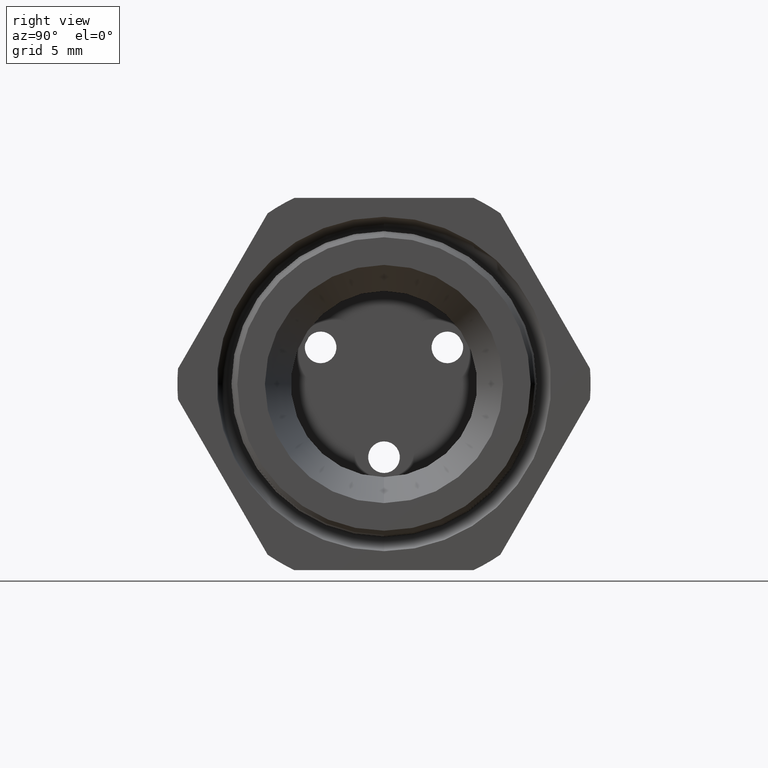
[diagram: clean part render]
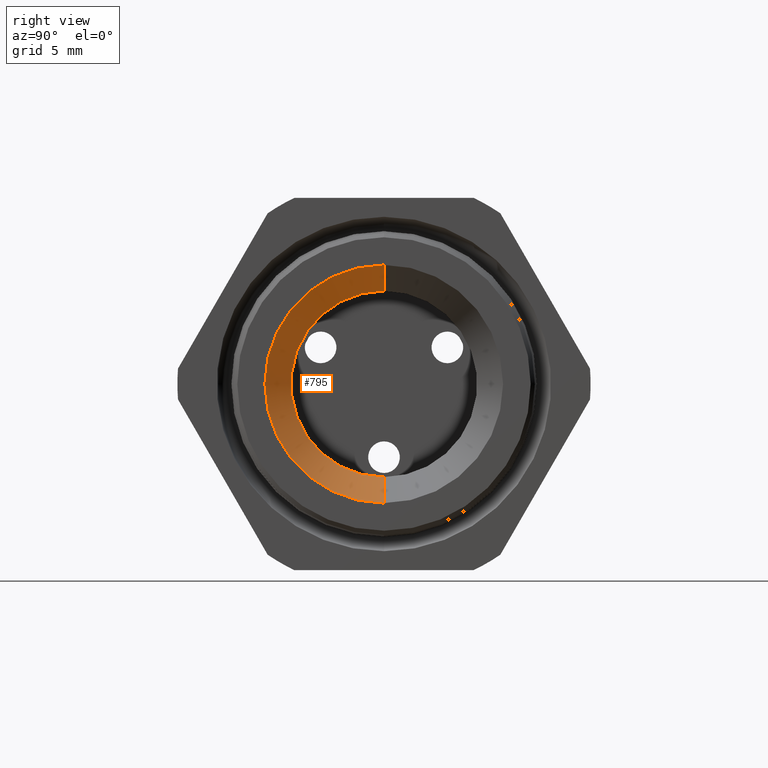
[diagram: same view with one face highlighted and labeled with its STEP entity id]
A machine part, right view. The second image highlights one B-rep face of the part: STEP entity #795.
In plain terms, the highlighted conical surface has half-angle 5.108 deg.
Its self-contained STEP definition (entity closure, byte-faithful):
#795 = ADVANCED_FACE ( 'NONE', ( #2446 ), #2445, .F. ) ;
#796 = ORIENTED_EDGE ( 'NONE', *, *, #946, .F. ) ;
#863 = EDGE_LOOP ( 'NONE', ( #796, #943, #945, #876 ) ) ;
#875 = VERTEX_POINT ( 'NONE', #2662 ) ;
#876 = ORIENTED_EDGE ( 'NONE', *, *, #953, .F. ) ;
#936 = VERTEX_POINT ( 'NONE', #2745 ) ;
#937 = EDGE_CURVE ( 'NONE', #952, #875, #2744, .T. ) ;
#938 = VERTEX_POINT ( 'NONE', #2739 ) ;
#943 = ORIENTED_EDGE ( 'NONE', *, *, #944, .T. ) ;
#944 = EDGE_CURVE ( 'NONE', #936, #952, #2734, .T. ) ;
#945 = ORIENTED_EDGE ( 'NONE', *, *, #937, .T. ) ;
#946 = EDGE_CURVE ( 'NONE', #936, #938, #2476, .T. ) ;
#952 = VERTEX_POINT ( 'NONE', #2772 ) ;
#953 = EDGE_CURVE ( 'NONE', #938, #875, #2771, .T. ) ;
#2445 = CONICAL_SURFACE ( 'NONE', #2507, 0.2349999999999999600, 0.08915526176478623400 ) ;
#2446 = FACE_OUTER_BOUND ( 'NONE', #863, .T. ) ;
#2476 = CIRCLE ( 'NONE', #2792, 0.2349999999999999600 ) ;
#2504 = DIRECTION ( 'NONE',  ( 0.0000000000000000000, 0.0000000000000000000, -1.000000000000000000 ) ) ;
#2505 = DIRECTION ( 'NONE',  ( 1.000000000000000000, 0.0000000000000000000, 0.0000000000000000000 ) ) ;
#2506 = CARTESIAN_POINT ( 'NONE',  ( -0.7854330708661414500, 0.0000000000000000000, 0.0000000000000000000 ) ) ;
#2507 = AXIS2_PLACEMENT_3D ( 'NONE', #2506, #2505, #2504 ) ;
#2662 = CARTESIAN_POINT ( 'NONE',  ( -0.04999999999999998200, 0.0000000000000000000, -0.3007420072869181300 ) ) ;
#2731 = DIRECTION ( 'NONE',  ( 0.9960283015027057200, 1.090391193840671700E-017, 0.08903719787614228200 ) ) ;
#2732 = VECTOR ( 'NONE', #2731, 39.37007874015748900 ) ;
#2733 = CARTESIAN_POINT ( 'NONE',  ( -0.7854330708661414500, 2.877919977996279200E-017, 0.2349999999999999600 ) ) ;
#2734 = LINE ( 'NONE', #2733, #2732 ) ;
#2739 = CARTESIAN_POINT ( 'NONE',  ( -0.7854330708661414500, 0.0000000000000000000, -0.2349999999999999600 ) ) ;
#2740 = DIRECTION ( 'NONE',  ( 0.0000000000000000000, 0.0000000000000000000, -1.000000000000000000 ) ) ;
#2741 = DIRECTION ( 'NONE',  ( 1.000000000000000000, 0.0000000000000000000, 0.0000000000000000000 ) ) ;
#2742 = CARTESIAN_POINT ( 'NONE',  ( -0.04999999999999998200, 0.0000000000000000000, 0.0000000000000000000 ) ) ;
#2743 = AXIS2_PLACEMENT_3D ( 'NONE', #2742, #2741, #2740 ) ;
#2744 = CIRCLE ( 'NONE', #2743, 0.3007420072869181300 ) ;
#2745 = CARTESIAN_POINT ( 'NONE',  ( -0.7854330708661414500, 2.877919977996279200E-017, 0.2349999999999999600 ) ) ;
#2768 = DIRECTION ( 'NONE',  ( 0.9960283015027057200, 0.0000000000000000000, -0.08903719787614228200 ) ) ;
#2769 = VECTOR ( 'NONE', #2768, 39.37007874015748900 ) ;
#2770 = CARTESIAN_POINT ( 'NONE',  ( -0.7854330708661414500, 0.0000000000000000000, -0.2349999999999999600 ) ) ;
#2771 = LINE ( 'NONE', #2770, #2769 ) ;
#2772 = CARTESIAN_POINT ( 'NONE',  ( -0.04999999999999998200, 3.683027365930742200E-017, 0.3007420072869181300 ) ) ;
#2789 = DIRECTION ( 'NONE',  ( 0.0000000000000000000, 0.0000000000000000000, -1.000000000000000000 ) ) ;
#2790 = DIRECTION ( 'NONE',  ( 1.000000000000000000, 0.0000000000000000000, 0.0000000000000000000 ) ) ;
#2791 = CARTESIAN_POINT ( 'NONE',  ( -0.7854330708661414500, 0.0000000000000000000, 0.0000000000000000000 ) ) ;
#2792 = AXIS2_PLACEMENT_3D ( 'NONE', #2791, #2790, #2789 ) ;